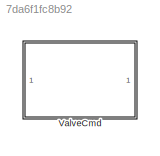
MODEL slx_7da6f1fc8b92
KIND library
CONFIG SolverName = VariableStepAuto
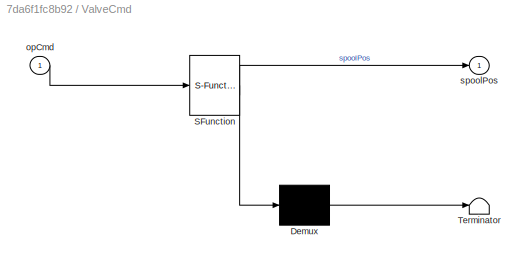
BLOCK [SubSystem] ValveCmd
  ErrorFcn = Stateflow.Translate.translate
  PermitHierarchicalResolution = ExplicitOnly
  SFBlockType = MATLAB Function
  TreatAsAtomicUnit = on
BLOCK [Demux] ValveCmd/ Demux 
  Outputs = 1
BLOCK [S-Function] ValveCmd/ SFunction 
  EnableBusSupport = off
  FunctionName = sf_sfun
  PortCounts = [1 2]
  SFcnIsStateOwnerBlock = off
  SFunctionDeploymentMode = off
  Tag = Stateflow S-Function 3
BLOCK [Terminator] ValveCmd/ Terminator 
BLOCK [Inport] ValveCmd/opCmd
BLOCK [Outport] ValveCmd/spoolPos
CHART ValveCmd states=1 transitions=1
  STATE_LABEL 'eML_blk_kernel()'
  STATE_LABEL 'SCRIPT:\nfunction spoolPos  = valveCmd(opCmd)\n% Local constants\nfullOpenMinCmd = 0.2;\n\n% Initialize outputs\nspoolPos = 0;\n\n% Determine spool position\nif opCmd >= fullOpenMinCmd\n    spoolPos = 5;\nelseif opCmd <= -1*fullOpenMinCmd\n    spoolPos = -5;\nelseif opCmd > 0\n    spoolPos = interp1([0 fullOpenMinCmd],[0 5],opCmd);\nelseif opCmd < 0\n    spoolPos = interp1([-1*fullOpenMinCmd 0],[-5 0],opCmd);\nend'
CHART  states=0 transitions=0
